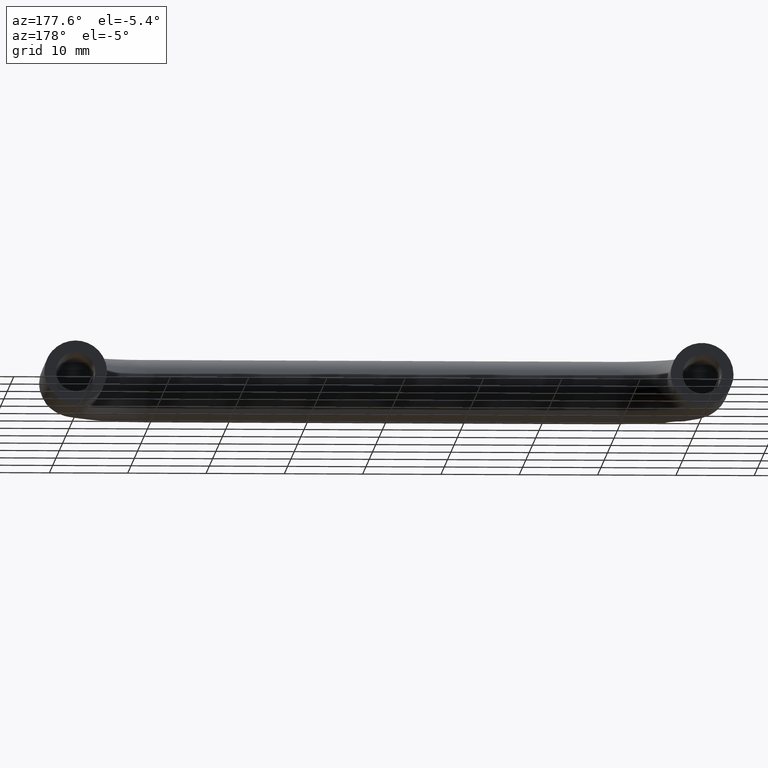
[diagram: clean part render]
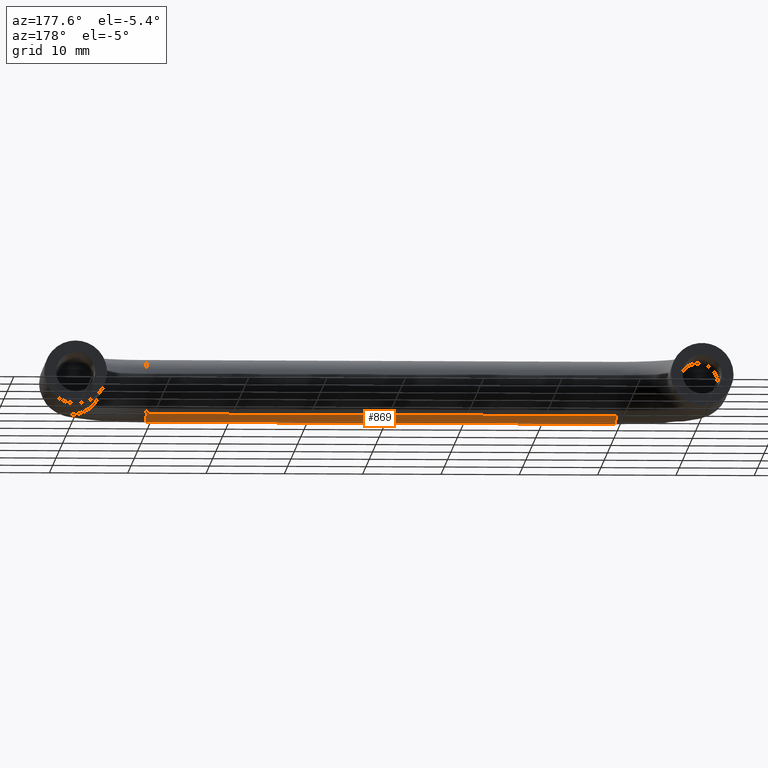
[diagram: same view with one face highlighted and labeled with its STEP entity id]
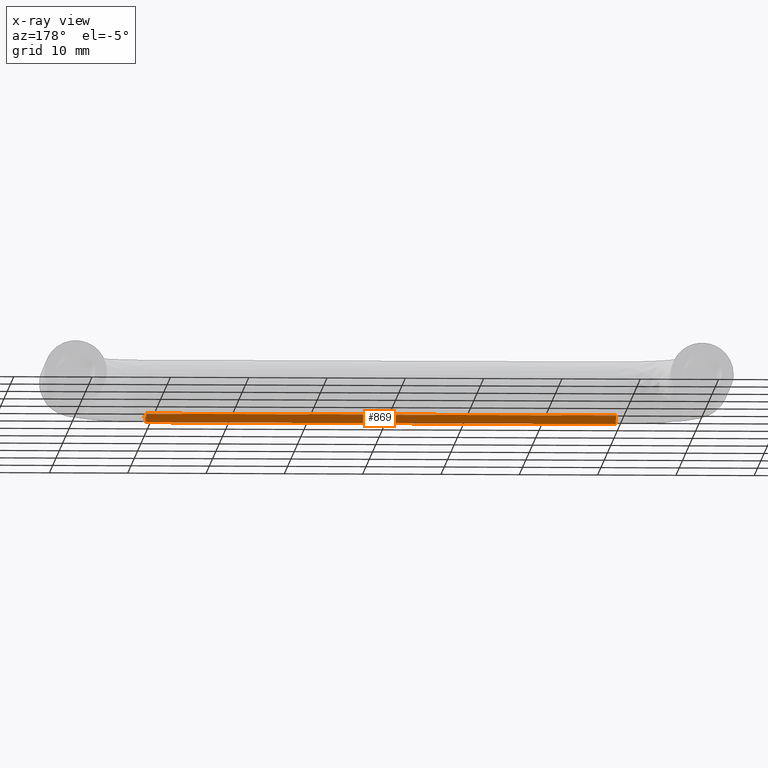
[diagram: x-ray of the same camera — body ghosted, the highlighted face saturated]
A machine part, auxiliary view. The second image highlights one B-rep face of the part: STEP entity #869.
The next image is the same camera in x-ray: the body ghosted, the highlighted face saturated — about 0% of this face is hidden behind the body in this view.
In plain terms, the highlighted face is a freeform B-spline surface patch.
Its self-contained STEP definition (entity closure, byte-faithful):
#652=CARTESIAN_POINT('',(70.000000000068184,-23.512772870504168,-3.132682749045181));
#653=VERTEX_POINT('',#652);
#667=CARTESIAN_POINT('',(9.999999999955744,-23.512770200805161,-3.132680629395788));
#668=VERTEX_POINT('',#667);
#669=CARTESIAN_POINT('',(9.999999999955744,-23.512770200805161,-3.132680629395788));
#670=CARTESIAN_POINT('',(70.000000000068184,-23.512772870504168,-3.132682749045181));
#671=QUASI_UNIFORM_CURVE('',1,(#669,#670),.UNSPECIFIED.,.F.,.U.);
#672=EDGE_CURVE('',#668,#653,#671,.T.);
#721=CARTESIAN_POINT('',(10.0,-28.650478575597770,-2.995824313989811));
#722=VERTEX_POINT('',#721);
#736=CARTESIAN_POINT('',(70.000000000000014,-28.650478555391039,-2.995824331867176));
#737=VERTEX_POINT('',#736);
#738=CARTESIAN_POINT('',(10.0,-28.650478575597770,-2.995824313989811));
#739=CARTESIAN_POINT('',(70.000000000000014,-28.650478555391039,-2.995824331867176));
#740=QUASI_UNIFORM_CURVE('',1,(#738,#739),.UNSPECIFIED.,.F.,.U.);
#741=EDGE_CURVE('',#722,#737,#740,.T.);
#791=CARTESIAN_POINT('',(8.499999999361522,-28.650480192862950,-2.995822883156010));
#792=CARTESIAN_POINT('',(8.499999999361522,-26.138991192375961,-5.217800653541194));
#793=CARTESIAN_POINT('',(8.499999999361522,-23.512770200789916,-3.132680629416496));
#794=CARTESIAN_POINT('',(71.537500000196090,-28.650480192862940,-2.995822883156010));
#795=CARTESIAN_POINT('',(71.537500000196090,-26.138991192375961,-5.217800653541194));
#796=CARTESIAN_POINT('',(71.537500000196090,-23.512770200789905,-3.132680629416496));
#804=(BOUNDED_SURFACE()B_SPLINE_SURFACE(2,1,((#791,#794),(#792,#795),(#793,#796)),.UNSPECIFIED.,.F.,.F.,.U.)B_SPLINE_SURFACE_WITH_KNOTS((3,3),(2,2),(0.0,5.817753329419233),(0.0,63.037500000834576),.UNSPECIFIED.)GEOMETRIC_REPRESENTATION_ITEM()RATIONAL_B_SPLINE_SURFACE(((1.0,1.0),(0.742253967444162,0.742253967444162),(0.938140952186599,0.938140952186599)))REPRESENTATION_ITEM('')SURFACE());
#805=CARTESIAN_POINT('',(70.000000000175731,-25.899479618094979,-3.998736757129889));
#806=VERTEX_POINT('',#805);
#807=CARTESIAN_POINT('',(70.000000000068184,-23.512772870504158,-3.132682749045181));
#808=CARTESIAN_POINT('',(70.000000000115421,-24.561202997038603,-3.965095113433388));
#809=CARTESIAN_POINT('',(70.000000000175731,-25.899479618094983,-3.998736757129889));
#817=(BOUNDED_CURVE()B_SPLINE_CURVE(2,(#807,#808,#809),.UNSPECIFIED.,.F.,.U.)B_SPLINE_CURVE_WITH_KNOTS((3,3),(0.142272992642191,0.245579891758284),.UNSPECIFIED.)CURVE()GEOMETRIC_REPRESENTATION_ITEM()RATIONAL_B_SPLINE_CURVE((0.856349759543174,0.873074377620828,0.989826157655530))REPRESENTATION_ITEM(''));
#818=EDGE_CURVE('',#653,#806,#817,.T.);
#819=ORIENTED_EDGE('',*,*,#818,.T.);
#820=CARTESIAN_POINT('',(70.000000000175731,-25.899479618094979,-3.998736757129890));
#821=CARTESIAN_POINT('',(70.0,-25.949731871374752,-4.0));
#822=CARTESIAN_POINT('',(70.0,-26.0,-4.0));
#823=CARTESIAN_POINT('',(70.000000000000014,-27.515463184698838,-4.000000000000000));
#824=CARTESIAN_POINT('',(70.000000000000014,-28.650478555391043,-2.995824331867176));
#832=(BOUNDED_CURVE()B_SPLINE_CURVE(2,(#820,#821,#822,#823,#824),.UNSPECIFIED.,.F.,.U.)B_SPLINE_CURVE_WITH_KNOTS((3,2,3),(0.245579891758284,0.250000000000000,0.365779805509314),.UNSPECIFIED.)CURVE()GEOMETRIC_REPRESENTATION_ITEM()RATIONAL_B_SPLINE_CURVE((0.989826157655530,0.994821521078320,1.0,0.864355520363126,0.854350172492407))REPRESENTATION_ITEM(''));
#833=EDGE_CURVE('',#806,#737,#832,.T.);
#834=ORIENTED_EDGE('',*,*,#833,.T.);
#835=ORIENTED_EDGE('',*,*,#741,.F.);
#836=CARTESIAN_POINT('',(9.999999999891141,-25.721066993475230,-3.990262695346141));
#837=VERTEX_POINT('',#836);
#838=CARTESIAN_POINT('',(9.999999999891141,-25.721066993475233,-3.990262695346142));
#839=CARTESIAN_POINT('',(10.0,-25.860363536277340,-4.000000000000001));
#840=CARTESIAN_POINT('',(10.0,-26.0,-4.0));
#841=CARTESIAN_POINT('',(10.0,-27.515463200125097,-4.0));
#842=CARTESIAN_POINT('',(10.0,-28.650478575597770,-2.995824313989811));
#850=(BOUNDED_CURVE()B_SPLINE_CURVE(2,(#838,#839,#840,#841,#842),.UNSPECIFIED.,.F.,.U.)B_SPLINE_CURVE_WITH_KNOTS((3,2,3),(0.237833686515912,0.250000000000000,0.365779806528000),.UNSPECIFIED.)CURVE()GEOMETRIC_REPRESENTATION_ITEM()RATIONAL_B_SPLINE_CURVE((0.972879876346409,0.985746277130208,1.0,0.864355519169661,0.854350172316343))REPRESENTATION_ITEM(''));
#851=EDGE_CURVE('',#837,#722,#850,.T.);
#852=ORIENTED_EDGE('',*,*,#851,.F.);
#853=CARTESIAN_POINT('',(9.999999999955744,-23.512770200805161,-3.132680629395788));
#854=CARTESIAN_POINT('',(9.999999999927331,-24.483982278594308,-3.903786243676122));
#855=CARTESIAN_POINT('',(9.999999999891141,-25.721066993475230,-3.990262695346142));
#863=(BOUNDED_CURVE()B_SPLINE_CURVE(2,(#853,#854,#855),.UNSPECIFIED.,.F.,.U.)B_SPLINE_CURVE_WITH_KNOTS((3,3),(0.142272863630943,0.237833686515912),.UNSPECIFIED.)CURVE()GEOMETRIC_REPRESENTATION_ITEM()RATIONAL_B_SPLINE_CURVE((0.856349717771409,0.871820188210339,0.972879876346409))REPRESENTATION_ITEM(''));
#864=EDGE_CURVE('',#668,#837,#863,.T.);
#865=ORIENTED_EDGE('',*,*,#864,.F.);
#866=ORIENTED_EDGE('',*,*,#672,.T.);
#867=EDGE_LOOP('',(#819,#834,#835,#852,#865,#866));
#868=FACE_OUTER_BOUND('',#867,.T.);
#869=ADVANCED_FACE('',(#868),#804,.T.);